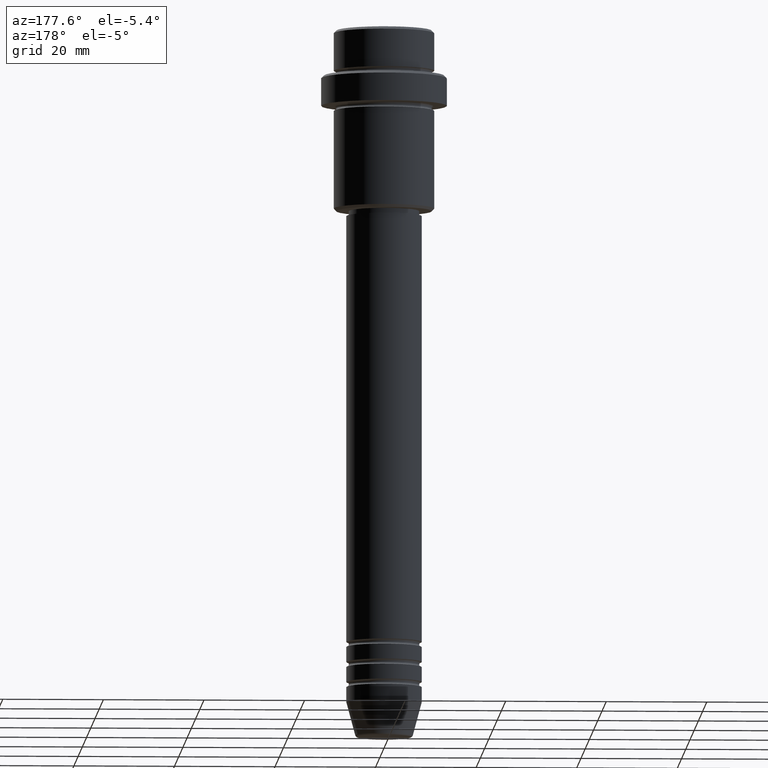
[diagram: clean part render]
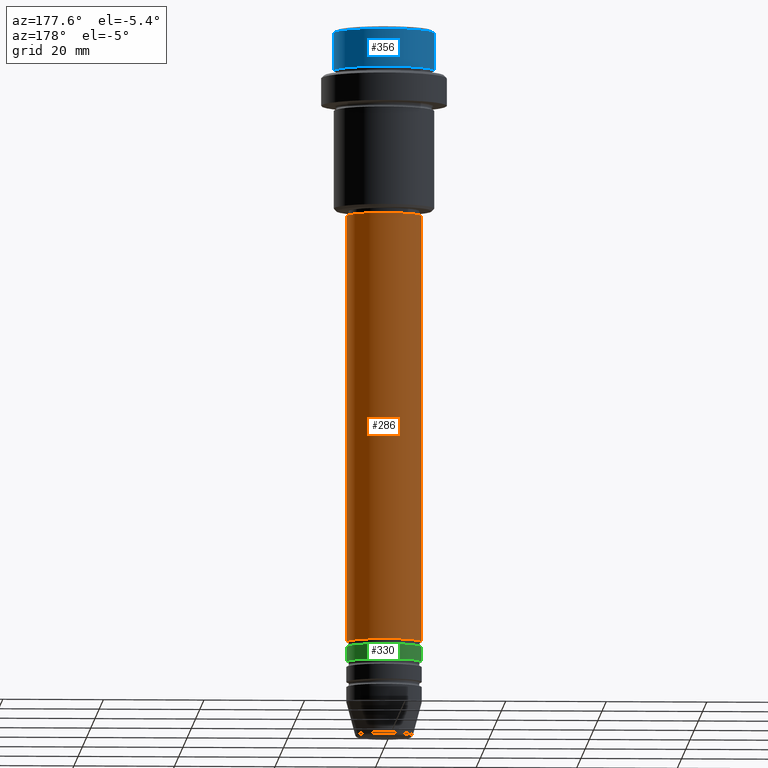
[diagram: same view with three faces highlighted in distinct colors, each labeled with its STEP entity id]
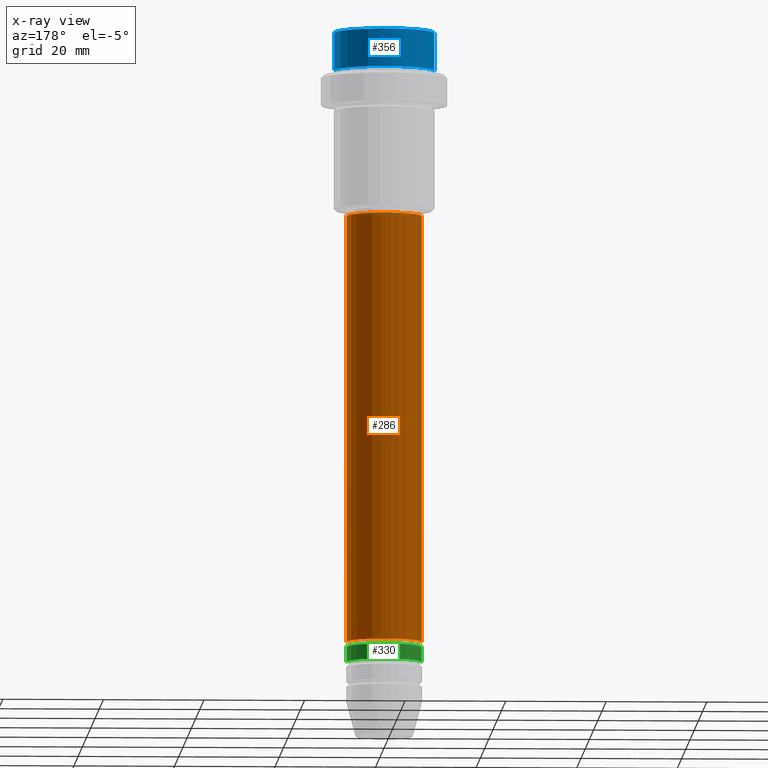
[diagram: x-ray of the same camera — body ghosted, the three highlighted faces saturated]
A machine part, auxiliary view with three faces highlighted in distinct colors.
The next image is the same camera in x-ray (body ghosted, the three faces saturated) — at least one of them is partly hidden behind the body in this view.
Their STEP definitions:

[orange] entity #286 — the highlighted cylindrical surface (partial cylindrical patch) has radius 7.5 mm, axis along (-0, -0, 1).
#4 = CARTESIAN_POINT ( 'NONE',  ( 0.000000000000000000, 0.000000000000000000, 0.000000000000000000 ) ) ;
#103 = CIRCLE ( 'NONE', #244, 7.500000000000000000 ) ;
#165 = VERTEX_POINT ( 'NONE', #1283 ) ;
#168 = CARTESIAN_POINT ( 'NONE',  ( 0.000000000000000000, 0.000000000000000000, -36.99999999999999289 ) ) ;
#244 = AXIS2_PLACEMENT_3D ( 'NONE', #168, #595, #376 ) ;
#259 = DIRECTION ( 'NONE',  ( -0.000000000000000000, -0.000000000000000000, 1.000000000000000000 ) ) ;
#286 = ADVANCED_FACE ( 'NONE', ( #447 ), #1330, .T. ) ;
#292 = CARTESIAN_POINT ( 'NONE',  ( 7.500000000000000000, 0.000000000000000000, -121.9999999999998721 ) ) ;
#324 = DIRECTION ( 'NONE',  ( -0.000000000000000000, -0.000000000000000000, 1.000000000000000000 ) ) ;
#342 = DIRECTION ( 'NONE',  ( 1.000000000000000000, 0.000000000000000000, 0.000000000000000000 ) ) ;
#373 = LINE ( 'NONE', #480, #889 ) ;
#376 = DIRECTION ( 'NONE',  ( 1.000000000000000000, 0.000000000000000000, 0.000000000000000000 ) ) ;
#382 = CARTESIAN_POINT ( 'NONE',  ( 0.000000000000000000, 0.000000000000000000, -121.9999999999998721 ) ) ;
#439 = EDGE_LOOP ( 'NONE', ( #1119, #1298, #780, #876 ) ) ;
#447 = FACE_OUTER_BOUND ( 'NONE', #439, .T. ) ;
#480 = CARTESIAN_POINT ( 'NONE',  ( 7.500000000000000000, 0.000000000000000000, 0.000000000000000000 ) ) ;
#500 = CARTESIAN_POINT ( 'NONE',  ( -7.500000000000000000, 9.184850993605147944E-16, -121.9999999999998721 ) ) ;
#509 = VERTEX_POINT ( 'NONE', #690 ) ;
#562 = VERTEX_POINT ( 'NONE', #292 ) ;
#594 = DIRECTION ( 'NONE',  ( -0.000000000000000000, -0.000000000000000000, 1.000000000000000000 ) ) ;
#595 = DIRECTION ( 'NONE',  ( -0.000000000000000000, -0.000000000000000000, 1.000000000000000000 ) ) ;
#689 = LINE ( 'NONE', #1210, #1292 ) ;
#690 = CARTESIAN_POINT ( 'NONE',  ( -7.500000000000000000, 9.184850993605147944E-16, -36.99999999999999289 ) ) ;
#780 = ORIENTED_EDGE ( 'NONE', *, *, #1257, .F. ) ;
#836 = AXIS2_PLACEMENT_3D ( 'NONE', #4, #324, #342 ) ;
#876 = ORIENTED_EDGE ( 'NONE', *, *, #907, .F. ) ;
#889 = VECTOR ( 'NONE', #259, 1000.000000000000000 ) ;
#907 = EDGE_CURVE ( 'NONE', #562, #165, #373, .T. ) ;
#928 = CIRCLE ( 'NONE', #1183, 7.500000000000000000 ) ;
#984 = EDGE_CURVE ( 'NONE', #562, #1003, #928, .T. ) ;
#1003 = VERTEX_POINT ( 'NONE', #500 ) ;
#1119 = ORIENTED_EDGE ( 'NONE', *, *, #984, .T. ) ;
#1183 = AXIS2_PLACEMENT_3D ( 'NONE', #382, #594, #1253 ) ;
#1210 = CARTESIAN_POINT ( 'NONE',  ( -7.500000000000000000, 9.184850993605147944E-16, 0.000000000000000000 ) ) ;
#1253 = DIRECTION ( 'NONE',  ( 1.000000000000000000, 0.000000000000000000, 0.000000000000000000 ) ) ;
#1257 = EDGE_CURVE ( 'NONE', #165, #509, #103, .T. ) ;
#1283 = CARTESIAN_POINT ( 'NONE',  ( 7.500000000000000000, 0.000000000000000000, -36.99999999999999289 ) ) ;
#1292 = VECTOR ( 'NONE', #1417, 1000.000000000000000 ) ;
#1298 = ORIENTED_EDGE ( 'NONE', *, *, #1370, .T. ) ;
#1330 = CYLINDRICAL_SURFACE ( 'NONE', #836, 7.500000000000000000 ) ;
#1370 = EDGE_CURVE ( 'NONE', #1003, #509, #689, .T. ) ;
#1417 = DIRECTION ( 'NONE',  ( -0.000000000000000000, -0.000000000000000000, 1.000000000000000000 ) ) ;

[blue] entity #356 — the highlighted cylindrical surface (partial cylindrical patch) has radius 10 mm, axis along (-0, -0, 1).
#15 = CIRCLE ( 'NONE', #1177, 9.999999999999998224 ) ;
#44 = CARTESIAN_POINT ( 'NONE',  ( -9.999999999999998224, 1.224646799147353059E-15, -0.4999999999999831246 ) ) ;
#121 = CARTESIAN_POINT ( 'NONE',  ( 9.999999999999998224, 0.000000000000000000, -7.999999999999998224 ) ) ;
#134 = DIRECTION ( 'NONE',  ( 1.000000000000000000, 0.000000000000000000, 0.000000000000000000 ) ) ;
#173 = VERTEX_POINT ( 'NONE', #1365 ) ;
#307 = ORIENTED_EDGE ( 'NONE', *, *, #468, .F. ) ;
#321 = ORIENTED_EDGE ( 'NONE', *, *, #602, .T. ) ;
#331 = CARTESIAN_POINT ( 'NONE',  ( 0.000000000000000000, 0.000000000000000000, 0.000000000000000000 ) ) ;
#355 = CARTESIAN_POINT ( 'NONE',  ( 0.000000000000000000, 0.000000000000000000, -0.4999999999999831246 ) ) ;
#356 = ADVANCED_FACE ( 'NONE', ( #669 ), #990, .T. ) ;
#402 = EDGE_CURVE ( 'NONE', #1201, #774, #677, .T. ) ;
#468 = EDGE_CURVE ( 'NONE', #728, #774, #919, .T. ) ;
#582 = DIRECTION ( 'NONE',  ( 0.000000000000000000, 0.000000000000000000, -1.000000000000000000 ) ) ;
#602 = EDGE_CURVE ( 'NONE', #173, #1201, #942, .T. ) ;
#658 = VECTOR ( 'NONE', #948, 1000.000000000000000 ) ;
#669 = FACE_OUTER_BOUND ( 'NONE', #971, .T. ) ;
#677 = CIRCLE ( 'NONE', #1293, 9.999999999999998224 ) ;
#728 = VERTEX_POINT ( 'NONE', #121 ) ;
#762 = DIRECTION ( 'NONE',  ( 1.000000000000000000, 0.000000000000000000, 0.000000000000000000 ) ) ;
#774 = VERTEX_POINT ( 'NONE', #1089 ) ;
#803 = CARTESIAN_POINT ( 'NONE',  ( 0.000000000000000000, 0.000000000000000000, -7.999999999999998224 ) ) ;
#812 = DIRECTION ( 'NONE',  ( -0.000000000000000000, -0.000000000000000000, 1.000000000000000000 ) ) ;
#828 = ORIENTED_EDGE ( 'NONE', *, *, #402, .T. ) ;
#864 = AXIS2_PLACEMENT_3D ( 'NONE', #331, #1102, #762 ) ;
#919 = LINE ( 'NONE', #1353, #1406 ) ;
#942 = LINE ( 'NONE', #962, #658 ) ;
#948 = DIRECTION ( 'NONE',  ( -0.000000000000000000, -0.000000000000000000, 1.000000000000000000 ) ) ;
#960 = EDGE_CURVE ( 'NONE', #728, #173, #15, .T. ) ;
#962 = CARTESIAN_POINT ( 'NONE',  ( -9.999999999999998224, 1.224646799147353059E-15, 0.000000000000000000 ) ) ;
#971 = EDGE_LOOP ( 'NONE', ( #993, #321, #828, #307 ) ) ;
#990 = CYLINDRICAL_SURFACE ( 'NONE', #864, 9.999999999999998224 ) ;
#993 = ORIENTED_EDGE ( 'NONE', *, *, #960, .T. ) ;
#1089 = CARTESIAN_POINT ( 'NONE',  ( 9.999999999999998224, 0.000000000000000000, -0.4999999999999831246 ) ) ;
#1102 = DIRECTION ( 'NONE',  ( -0.000000000000000000, -0.000000000000000000, 1.000000000000000000 ) ) ;
#1130 = DIRECTION ( 'NONE',  ( 1.000000000000000000, 0.000000000000000000, 0.000000000000000000 ) ) ;
#1177 = AXIS2_PLACEMENT_3D ( 'NONE', #803, #1229, #1130 ) ;
#1201 = VERTEX_POINT ( 'NONE', #44 ) ;
#1229 = DIRECTION ( 'NONE',  ( -0.000000000000000000, -0.000000000000000000, 1.000000000000000000 ) ) ;
#1293 = AXIS2_PLACEMENT_3D ( 'NONE', #355, #582, #134 ) ;
#1353 = CARTESIAN_POINT ( 'NONE',  ( 9.999999999999998224, 0.000000000000000000, 0.000000000000000000 ) ) ;
#1365 = CARTESIAN_POINT ( 'NONE',  ( -9.999999999999998224, 1.224646799147353059E-15, -7.999999999999998224 ) ) ;
#1406 = VECTOR ( 'NONE', #812, 1000.000000000000000 ) ;

[green] entity #330 — the highlighted cylindrical surface (partial cylindrical patch) has radius 7.5 mm, axis along (-0, -0, 1).
#21 = CYLINDRICAL_SURFACE ( 'NONE', #1159, 7.500000000000000000 ) ;
#60 = CARTESIAN_POINT ( 'NONE',  ( -7.500000000000000000, 9.184850993605147944E-16, -122.9999999999998721 ) ) ;
#99 = LINE ( 'NONE', #668, #1182 ) ;
#100 = EDGE_CURVE ( 'NONE', #1073, #523, #794, .T. ) ;
#109 = DIRECTION ( 'NONE',  ( -0.000000000000000000, -0.000000000000000000, 1.000000000000000000 ) ) ;
#176 = VERTEX_POINT ( 'NONE', #273 ) ;
#177 = AXIS2_PLACEMENT_3D ( 'NONE', #422, #740, #1400 ) ;
#226 = DIRECTION ( 'NONE',  ( 1.000000000000000000, 0.000000000000000000, 0.000000000000000000 ) ) ;
#227 = EDGE_CURVE ( 'NONE', #435, #1073, #428, .T. ) ;
#241 = VECTOR ( 'NONE', #1227, 1000.000000000000000 ) ;
#273 = CARTESIAN_POINT ( 'NONE',  ( 7.500000000000000000, 0.000000000000000000, -122.9999999999998721 ) ) ;
#283 = CARTESIAN_POINT ( 'NONE',  ( 7.500000000000000000, 0.000000000000000000, -125.9999999999998863 ) ) ;
#293 = AXIS2_PLACEMENT_3D ( 'NONE', #1198, #464, #226 ) ;
#315 = ORIENTED_EDGE ( 'NONE', *, *, #227, .T. ) ;
#330 = ADVANCED_FACE ( 'NONE', ( #349 ), #21, .T. ) ;
#341 = EDGE_CURVE ( 'NONE', #176, #523, #1337, .T. ) ;
#349 = FACE_OUTER_BOUND ( 'NONE', #1145, .T. ) ;
#397 = ORIENTED_EDGE ( 'NONE', *, *, #100, .T. ) ;
#407 = ORIENTED_EDGE ( 'NONE', *, *, #777, .F. ) ;
#422 = CARTESIAN_POINT ( 'NONE',  ( 0.000000000000000000, 0.000000000000000000, -125.9999999999998863 ) ) ;
#428 = CIRCLE ( 'NONE', #177, 7.500000000000000000 ) ;
#435 = VERTEX_POINT ( 'NONE', #283 ) ;
#437 = CARTESIAN_POINT ( 'NONE',  ( 0.000000000000000000, 0.000000000000000000, 0.000000000000000000 ) ) ;
#464 = DIRECTION ( 'NONE',  ( -0.000000000000000000, -0.000000000000000000, 1.000000000000000000 ) ) ;
#485 = ORIENTED_EDGE ( 'NONE', *, *, #341, .F. ) ;
#523 = VERTEX_POINT ( 'NONE', #60 ) ;
#565 = DIRECTION ( 'NONE',  ( 1.000000000000000000, 0.000000000000000000, 0.000000000000000000 ) ) ;
#590 = CARTESIAN_POINT ( 'NONE',  ( -7.500000000000000000, 9.184850993605147944E-16, 0.000000000000000000 ) ) ;
#668 = CARTESIAN_POINT ( 'NONE',  ( 7.500000000000000000, 0.000000000000000000, 0.000000000000000000 ) ) ;
#740 = DIRECTION ( 'NONE',  ( -0.000000000000000000, -0.000000000000000000, 1.000000000000000000 ) ) ;
#777 = EDGE_CURVE ( 'NONE', #435, #176, #99, .T. ) ;
#794 = LINE ( 'NONE', #590, #241 ) ;
#1073 = VERTEX_POINT ( 'NONE', #1386 ) ;
#1145 = EDGE_LOOP ( 'NONE', ( #315, #397, #485, #407 ) ) ;
#1159 = AXIS2_PLACEMENT_3D ( 'NONE', #437, #1213, #565 ) ;
#1182 = VECTOR ( 'NONE', #109, 1000.000000000000000 ) ;
#1198 = CARTESIAN_POINT ( 'NONE',  ( 0.000000000000000000, 0.000000000000000000, -122.9999999999998721 ) ) ;
#1213 = DIRECTION ( 'NONE',  ( -0.000000000000000000, -0.000000000000000000, 1.000000000000000000 ) ) ;
#1227 = DIRECTION ( 'NONE',  ( -0.000000000000000000, -0.000000000000000000, 1.000000000000000000 ) ) ;
#1337 = CIRCLE ( 'NONE', #293, 7.500000000000000000 ) ;
#1386 = CARTESIAN_POINT ( 'NONE',  ( -7.500000000000000000, 9.184850993605147944E-16, -125.9999999999998863 ) ) ;
#1400 = DIRECTION ( 'NONE',  ( 1.000000000000000000, 0.000000000000000000, 0.000000000000000000 ) ) ;